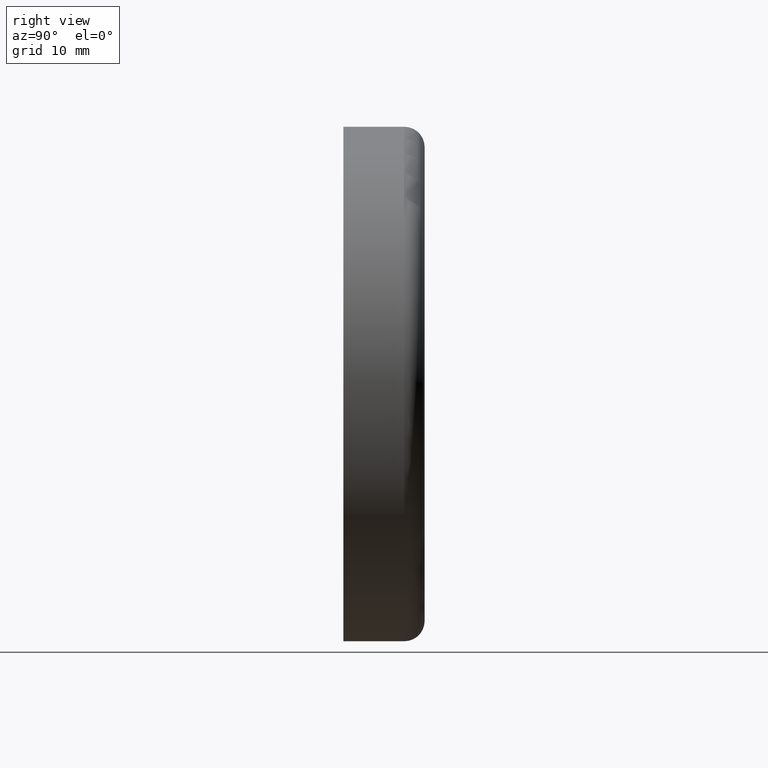
[diagram: clean part render]
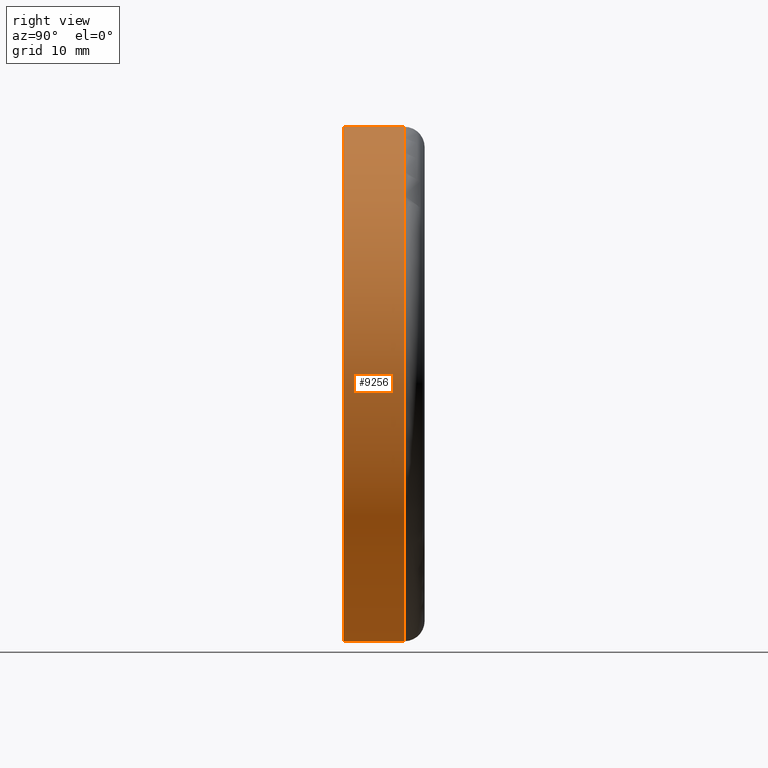
[diagram: same view with one face highlighted and labeled with its STEP entity id]
A machine part, right view. The second image highlights one B-rep face of the part: STEP entity #9256.
In plain terms, the highlighted cylindrical surface (partial cylindrical patch) has radius 38 mm, axis along (-0, -1, -0).
Its self-contained STEP definition (entity closure, byte-faithful):
#124 = ORIENTED_EDGE ( 'NONE', *, *, #6805, .T. ) ;
#716 = DIRECTION ( 'NONE',  ( 0.000000000000000000, 0.000000000000000000, -1.000000000000000000 ) ) ;
#880 = EDGE_CURVE ( 'NONE', #1651, #12601, #15127, .T. ) ;
#1506 = CARTESIAN_POINT ( 'NONE',  ( 0.000000000000000000, 0.000000000000000000, 0.000000000000000000 ) ) ;
#1651 = VERTEX_POINT ( 'NONE', #11176 ) ;
#1901 = CARTESIAN_POINT ( 'NONE',  ( 0.000000000000000000, 0.000000000000000000, -38.00000000000000711 ) ) ;
#2131 = CARTESIAN_POINT ( 'NONE',  ( 4.653657836759942730E-15, 0.000000000000000000, 38.00000000000000711 ) ) ;
#2241 = VERTEX_POINT ( 'NONE', #11324 ) ;
#3213 = ORIENTED_EDGE ( 'NONE', *, *, #7182, .F. ) ;
#3770 = EDGE_LOOP ( 'NONE', ( #5647, #124, #6354, #3213 ) ) ;
#5076 = DIRECTION ( 'NONE',  ( -0.000000000000000000, -1.000000000000000000, -0.000000000000000000 ) ) ;
#5647 = ORIENTED_EDGE ( 'NONE', *, *, #880, .T. ) ;
#5726 = FACE_OUTER_BOUND ( 'NONE', #3770, .T. ) ;
#5901 = CARTESIAN_POINT ( 'NONE',  ( 0.000000000000000000, 0.000000000000000000, -38.00000000000000711 ) ) ;
#6221 = EDGE_CURVE ( 'NONE', #11980, #2241, #12883, .T. ) ;
#6314 = CARTESIAN_POINT ( 'NONE',  ( 0.000000000000000000, 0.000000000000000000, 0.000000000000000000 ) ) ;
#6354 = ORIENTED_EDGE ( 'NONE', *, *, #6221, .F. ) ;
#6805 = EDGE_CURVE ( 'NONE', #12601, #2241, #10066, .T. ) ;
#7182 = EDGE_CURVE ( 'NONE', #1651, #11980, #15474, .T. ) ;
#8144 = DIRECTION ( 'NONE',  ( -0.000000000000000000, -1.000000000000000000, -0.000000000000000000 ) ) ;
#8323 = DIRECTION ( 'NONE',  ( 0.000000000000000000, 0.000000000000000000, -1.000000000000000000 ) ) ;
#8524 = CYLINDRICAL_SURFACE ( 'NONE', #13832, 38.00000000000000711 ) ;
#9256 = ADVANCED_FACE ( 'NONE', ( #5726 ), #8524, .T. ) ;
#10066 = LINE ( 'NONE', #2131, #10804 ) ;
#10371 = CARTESIAN_POINT ( 'NONE',  ( 0.000000000000000000, 9.000000000000001776, 0.000000000000000000 ) ) ;
#10431 = VECTOR ( 'NONE', #13937, 1000.000000000000000 ) ;
#10804 = VECTOR ( 'NONE', #8144, 1000.000000000000000 ) ;
#11157 = DIRECTION ( 'NONE',  ( 0.000000000000000000, 0.000000000000000000, -1.000000000000000000 ) ) ;
#11176 = CARTESIAN_POINT ( 'NONE',  ( 0.000000000000000000, 9.000000000000001776, -38.00000000000000711 ) ) ;
#11324 = CARTESIAN_POINT ( 'NONE',  ( 4.653657836759942730E-15, 0.000000000000000000, 38.00000000000000711 ) ) ;
#11579 = DIRECTION ( 'NONE',  ( -0.000000000000000000, -1.000000000000000000, -0.000000000000000000 ) ) ;
#11980 = VERTEX_POINT ( 'NONE', #5901 ) ;
#12402 = AXIS2_PLACEMENT_3D ( 'NONE', #6314, #5076, #8323 ) ;
#12601 = VERTEX_POINT ( 'NONE', #14858 ) ;
#12883 = CIRCLE ( 'NONE', #12402, 38.00000000000000711 ) ;
#13373 = AXIS2_PLACEMENT_3D ( 'NONE', #10371, #11579, #716 ) ;
#13832 = AXIS2_PLACEMENT_3D ( 'NONE', #1506, #14832, #11157 ) ;
#13937 = DIRECTION ( 'NONE',  ( -0.000000000000000000, -1.000000000000000000, -0.000000000000000000 ) ) ;
#14832 = DIRECTION ( 'NONE',  ( -0.000000000000000000, -1.000000000000000000, -0.000000000000000000 ) ) ;
#14858 = CARTESIAN_POINT ( 'NONE',  ( 4.653657836759942730E-15, 9.000000000000001776, 38.00000000000000711 ) ) ;
#15127 = CIRCLE ( 'NONE', #13373, 38.00000000000000711 ) ;
#15474 = LINE ( 'NONE', #1901, #10431 ) ;